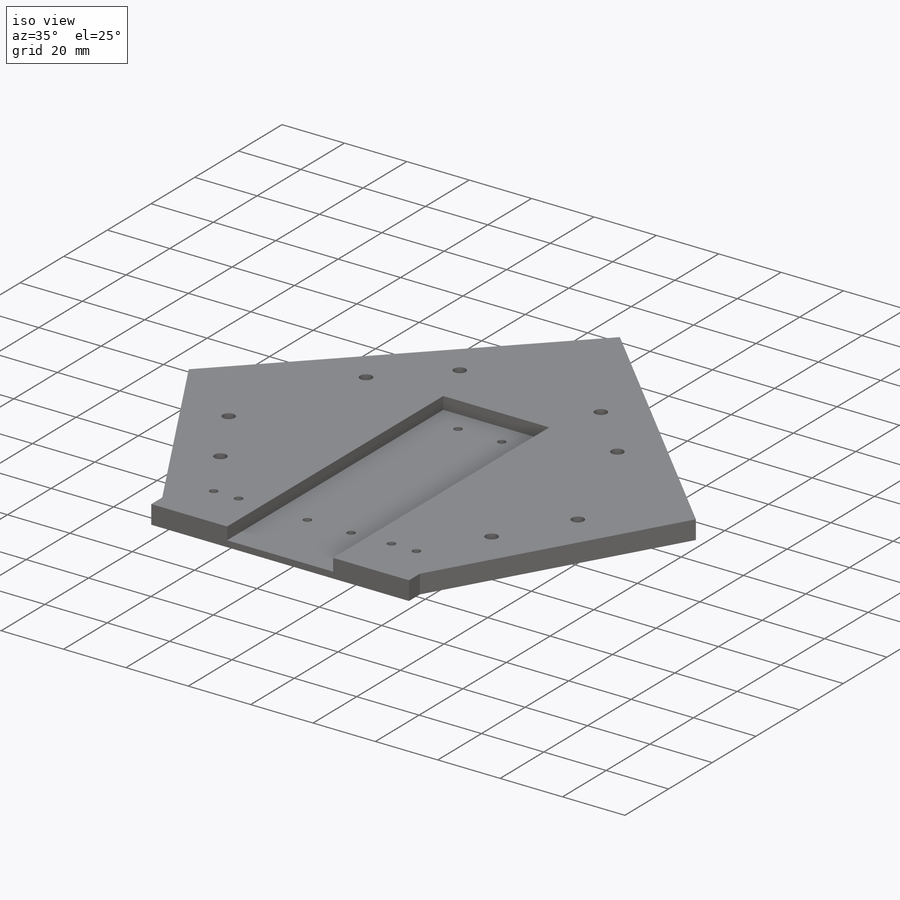
[diagram: iso view]
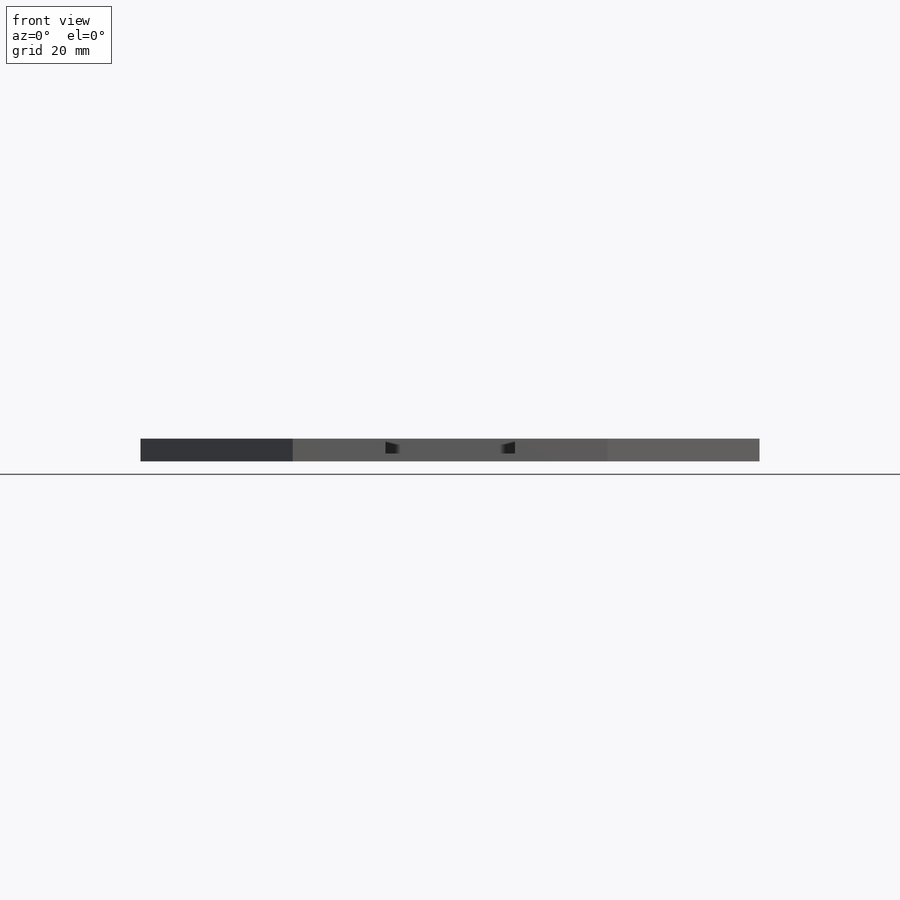
[diagram: front view]
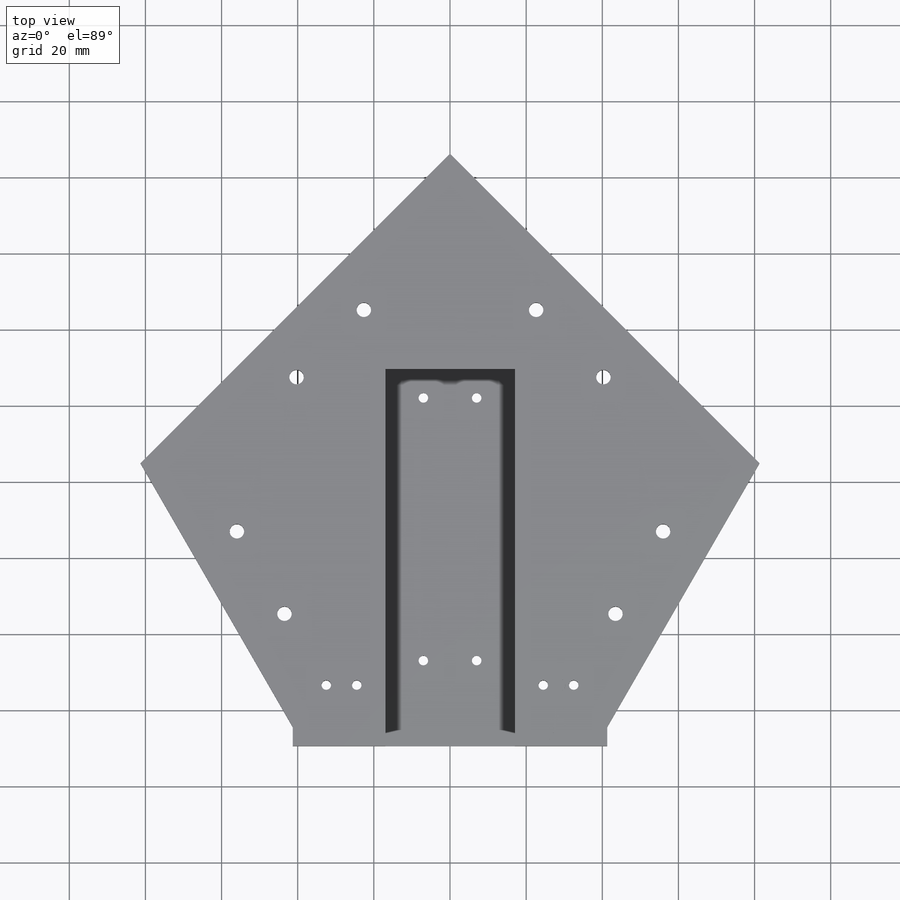
[diagram: top view]
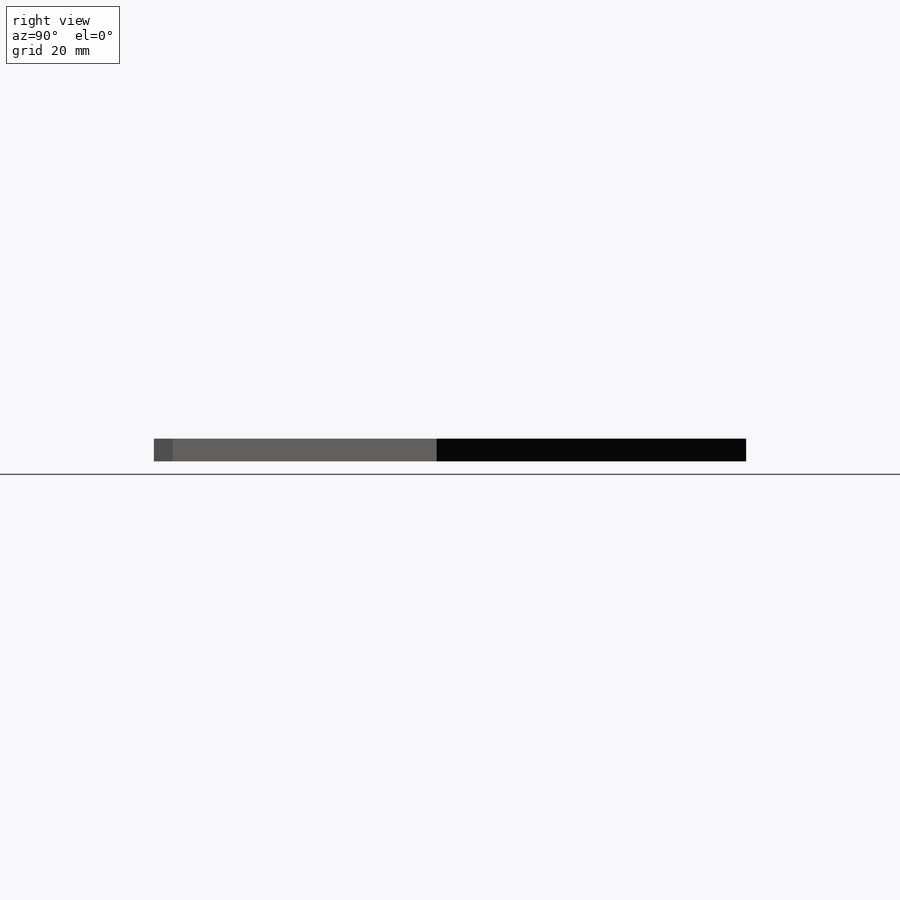
[diagram: right view]
SOLIDWORKS PART (.sldprt)
format: sldprt  version: not decoded by parser v0  size: 316,928 bytes
history: native  units: mm
features: sketch x8, cut_extrude x5, extrude x2, mirror x2, material x1 (+13 scaffold rows collapsed)
feature tree (31):
  scaffold x13  (default folders/planes/origin — collapsed)
  material  "Material <not specified>"
  sketch  "Sketch1"
  extrude  "Boss-Extrude1"  Depth=6mm
  sketch  "Sketch2"  dims[D1=34.0mm D2=99.0mm D3=24.315mm]
  cut_extrude  "Cut-Extrude1"  Depth=4mm
  sketch  "Sketch3"  dims[c1.D1=~34.641016mm c2.D1=~90.535852deg c2.D2=~40.65864mm c3.D2=90.0deg c3.D1=~35.211415mm c4.D1=90.0deg]
  sketch  "Sketch4"  dims[D1=13.0mm D2=13.0mm D3=12.5mm D4=12.5mm D5=13.0mm D6=13.0mm D7=12.5mm D8=12.5mm D9=13.0mm D10=13.0mm D11=12.5mm D12=12.5mm D13=13.0mm D14=13.0mm D15=12.5mm D16=12.5mm]
  cut_extrude  "Cut-Extrude2"  [1 undecoded]
  sketch  "Sketch5"  dims[c1.D1=~3.310814mm c1.D5=~2.809319mm c2.D1=16.0mm c2.D2=16.0mm c2.D3=11.5mm c2.D4=11.5mm c2.D5=9.0mm c2.D6=3.0mm c2.D7=9.0mm c2.D8=3.0mm]
  cut_extrude  "Cut-Extrude3"  Depth=10mm
  sketch  "Sketch6"  dims[c1.D1=~2.100934mm c1.D5=~4.224471mm c2.D1=7.5mm c2.D2=7.5mm c2.D3=7.0mm c2.D4=7.0mm c2.D5=22.5mm c2.D6=22.5mm]
  cut_extrude  "Cut-Extrude4"  Depth=10mm
  sketch  "Sketch7"  dims[c1.D1=2.5mm c1.D4=3.6mm c1.D2=4.0mm c1.D3=4.0mm c2.D4=16.0mm]
  cut_extrude  "Cut-Extrude5"  Depth=10mm
  mirror  "Mirror1"
  sketch  "Sketch8"
  extrude  "Boss-Extrude2"  Depth=6mm
  mirror  "Mirror2"
decode coverage: 12 of 17 modeling features carry decoded parameters
note: ~ marks probable driven/reference dimensions
note: 1 parameter value undecoded
note: suppression state not decoded; provenance and decode notes live in map.json
